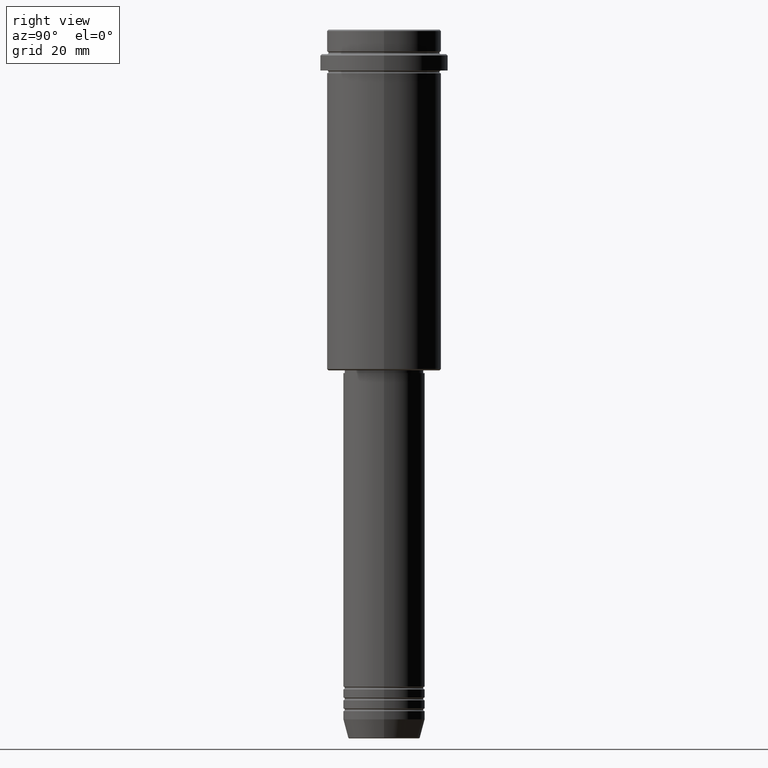
[diagram: clean part render]
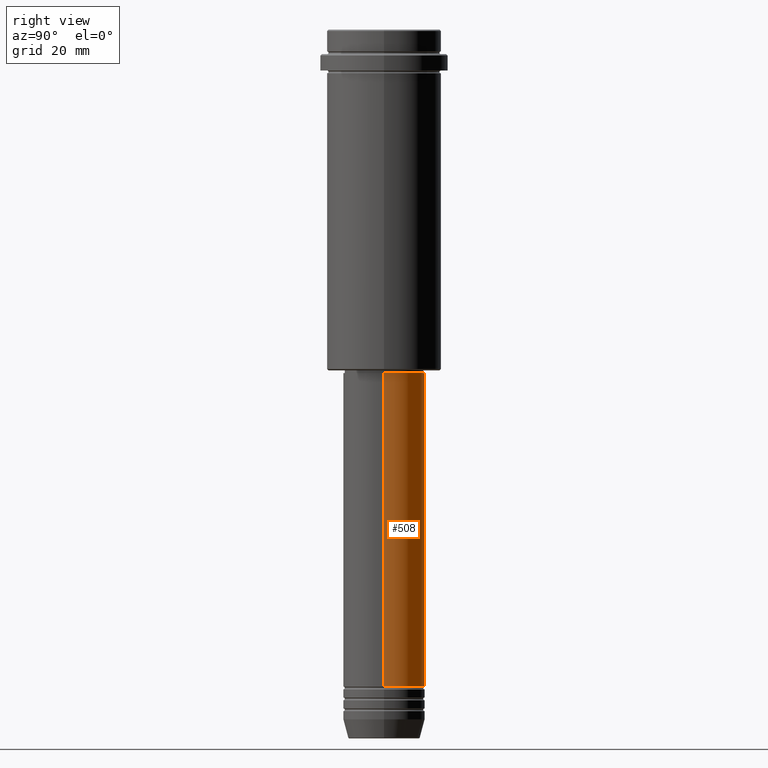
[diagram: same view with one face highlighted and labeled with its STEP entity id]
A machine part, right view. The second image highlights one B-rep face of the part: STEP entity #508.
In plain terms, the highlighted cylindrical surface (partial cylindrical patch) has radius 15 mm, axis along (-0, -0, 1).
Its self-contained STEP definition (entity closure, byte-faithful):
#27 = DIRECTION ( 'NONE',  ( 1.000000000000000000, 0.000000000000000000, 0.000000000000000000 ) ) ;
#90 = VERTEX_POINT ( 'NONE', #1397 ) ;
#172 = CARTESIAN_POINT ( 'NONE',  ( 0.000000000000000000, 0.000000000000000000, 0.000000000000000000 ) ) ;
#200 = CARTESIAN_POINT ( 'NONE',  ( -15.00000000000000000, 1.836970198721029589E-15, 0.000000000000000000 ) ) ;
#218 = VECTOR ( 'NONE', #306, 1000.000000000000000 ) ;
#242 = VECTOR ( 'NONE', #532, 1000.000000000000000 ) ;
#245 = AXIS2_PLACEMENT_3D ( 'NONE', #172, #281, #1078 ) ;
#281 = DIRECTION ( 'NONE',  ( -0.000000000000000000, -0.000000000000000000, 1.000000000000000000 ) ) ;
#298 = EDGE_CURVE ( 'NONE', #783, #90, #408, .T. ) ;
#306 = DIRECTION ( 'NONE',  ( -0.000000000000000000, -0.000000000000000000, 1.000000000000000000 ) ) ;
#328 = EDGE_CURVE ( 'NONE', #1151, #874, #588, .T. ) ;
#352 = DIRECTION ( 'NONE',  ( -0.000000000000000000, -0.000000000000000000, 1.000000000000000000 ) ) ;
#372 = ORIENTED_EDGE ( 'NONE', *, *, #748, .F. ) ;
#408 = CIRCLE ( 'NONE', #1390, 15.00000000000000000 ) ;
#426 = LINE ( 'NONE', #200, #242 ) ;
#442 = DIRECTION ( 'NONE',  ( -0.000000000000000000, -0.000000000000000000, 1.000000000000000000 ) ) ;
#508 = ADVANCED_FACE ( 'NONE', ( #817 ), #960, .T. ) ;
#532 = DIRECTION ( 'NONE',  ( -0.000000000000000000, -0.000000000000000000, 1.000000000000000000 ) ) ;
#558 = EDGE_LOOP ( 'NONE', ( #720, #929, #1073, #372 ) ) ;
#561 = CARTESIAN_POINT ( 'NONE',  ( 0.000000000000000000, 0.000000000000000000, -240.9999999999999147 ) ) ;
#588 = CIRCLE ( 'NONE', #1325, 15.00000000000000000 ) ;
#621 = CARTESIAN_POINT ( 'NONE',  ( 15.00000000000000000, 0.000000000000000000, -240.9999999999999147 ) ) ;
#661 = CARTESIAN_POINT ( 'NONE',  ( 0.000000000000000000, 0.000000000000000000, -126.0000000000000000 ) ) ;
#720 = ORIENTED_EDGE ( 'NONE', *, *, #298, .T. ) ;
#748 = EDGE_CURVE ( 'NONE', #783, #1151, #868, .T. ) ;
#783 = VERTEX_POINT ( 'NONE', #621 ) ;
#805 = DIRECTION ( 'NONE',  ( 1.000000000000000000, 0.000000000000000000, 0.000000000000000000 ) ) ;
#817 = FACE_OUTER_BOUND ( 'NONE', #558, .T. ) ;
#868 = LINE ( 'NONE', #1292, #218 ) ;
#874 = VERTEX_POINT ( 'NONE', #1297 ) ;
#929 = ORIENTED_EDGE ( 'NONE', *, *, #1228, .T. ) ;
#960 = CYLINDRICAL_SURFACE ( 'NONE', #245, 15.00000000000000000 ) ;
#1073 = ORIENTED_EDGE ( 'NONE', *, *, #328, .F. ) ;
#1078 = DIRECTION ( 'NONE',  ( 1.000000000000000000, 0.000000000000000000, 0.000000000000000000 ) ) ;
#1151 = VERTEX_POINT ( 'NONE', #1369 ) ;
#1228 = EDGE_CURVE ( 'NONE', #90, #874, #426, .T. ) ;
#1292 = CARTESIAN_POINT ( 'NONE',  ( 15.00000000000000000, 0.000000000000000000, 0.000000000000000000 ) ) ;
#1297 = CARTESIAN_POINT ( 'NONE',  ( -15.00000000000000000, 1.836970198721029589E-15, -126.0000000000000000 ) ) ;
#1325 = AXIS2_PLACEMENT_3D ( 'NONE', #661, #352, #805 ) ;
#1369 = CARTESIAN_POINT ( 'NONE',  ( 15.00000000000000000, 0.000000000000000000, -126.0000000000000000 ) ) ;
#1390 = AXIS2_PLACEMENT_3D ( 'NONE', #561, #442, #27 ) ;
#1397 = CARTESIAN_POINT ( 'NONE',  ( -15.00000000000000000, 1.836970198721029589E-15, -240.9999999999999147 ) ) ;